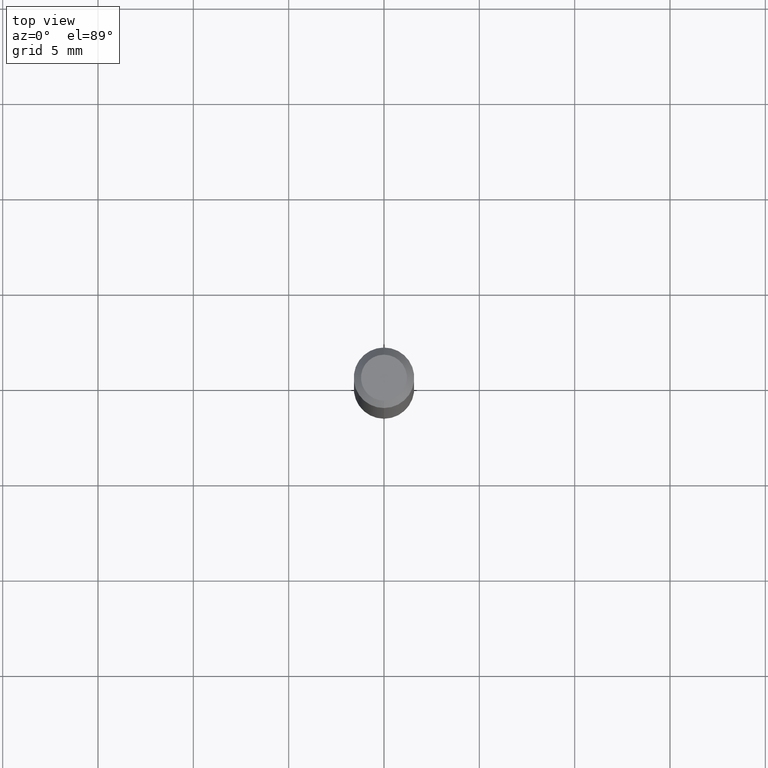
[diagram: clean part render]
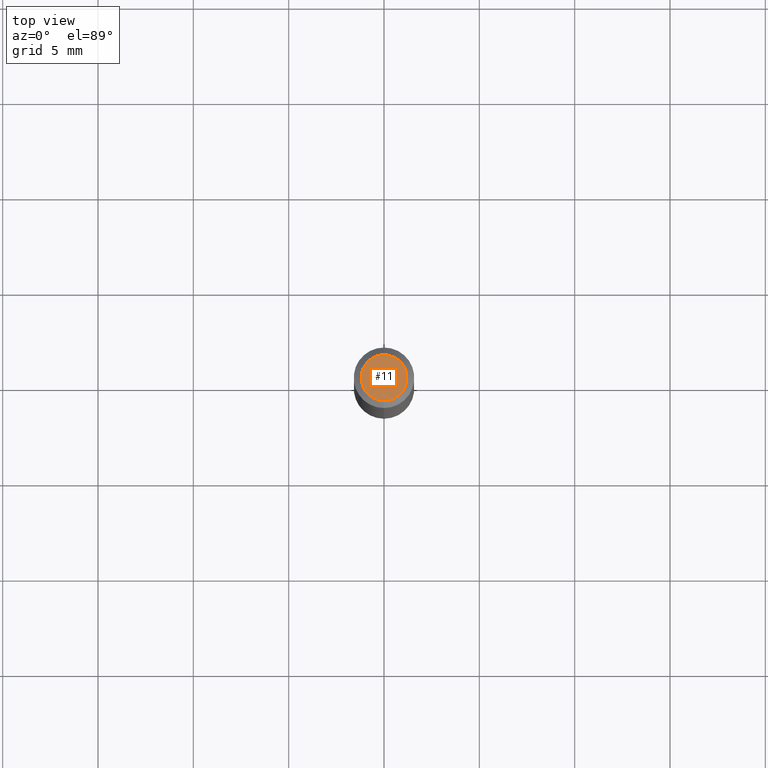
[diagram: same view with one face highlighted and labeled with its STEP entity id]
A machine part, top view. The second image highlights one B-rep face of the part: STEP entity #11.
In plain terms, the highlighted planar face has unit normal (0, -0, -1).
Its self-contained STEP definition (entity closure, byte-faithful):
#5 = AXIS2_PLACEMENT_3D ( 'NONE', #383, #31, #355 ) ;
#11 = ADVANCED_FACE ( 'NONE', ( #196 ), #111, .F. ) ;
#18 = ORIENTED_EDGE ( 'NONE', *, *, #283, .T. ) ;
#31 = DIRECTION ( 'NONE',  ( 2.445496042314745116E-29, -3.491442335155361584E-15, -1.000000000000000000 ) ) ;
#104 = ORIENTED_EDGE ( 'NONE', *, *, #108, .T. ) ;
#108 = EDGE_CURVE ( 'NONE', #192, #411, #215, .T. ) ;
#111 = PLANE ( 'NONE',  #5 ) ;
#134 = DIRECTION ( 'NONE',  ( -6.982962677686266711E-15, -1.000000000000000000, 3.491442335155361979E-15 ) ) ;
#192 = VERTEX_POINT ( 'NONE', #294 ) ;
#196 = FACE_OUTER_BOUND ( 'NONE', #301, .T. ) ;
#215 = CIRCLE ( 'NONE', #286, 0.04749999999999999362 ) ;
#216 = DIRECTION ( 'NONE',  ( -2.445496042314745397E-29, 3.491442335155361584E-15, 1.000000000000000000 ) ) ;
#229 = DIRECTION ( 'NONE',  ( -2.445496042314745397E-29, 3.491442335155361584E-15, 1.000000000000000000 ) ) ;
#264 = CARTESIAN_POINT ( 'NONE',  ( -3.773273898774340269E-16, -0.04749999999999999362, 1.569813386528787925E-16 ) ) ;
#265 = CIRCLE ( 'NONE', #434, 0.04749999999999999362 ) ;
#283 = EDGE_CURVE ( 'NONE', #411, #192, #265, .T. ) ;
#286 = AXIS2_PLACEMENT_3D ( 'NONE', #447, #229, #134 ) ;
#294 = CARTESIAN_POINT ( 'NONE',  ( 3.840629472727447874E-16, 0.04749999999999999362, -1.747056831868805136E-16 ) ) ;
#301 = EDGE_LOOP ( 'NONE', ( #104, #18 ) ) ;
#355 = DIRECTION ( 'NONE',  ( 6.982962677686265922E-15, 1.000000000000000000, -3.491442335155361584E-15 ) ) ;
#383 = CARTESIAN_POINT ( 'NONE',  ( 3.316907271900976096E-16, 0.04749999999999999362, -1.702745970533800772E-16 ) ) ;
#404 = CARTESIAN_POINT ( 'NONE',  ( 2.167240720526205134E-46, -3.094176343444650154E-32, -8.862172267000840541E-18 ) ) ;
#411 = VERTEX_POINT ( 'NONE', #264 ) ;
#434 = AXIS2_PLACEMENT_3D ( 'NONE', #404, #216, #483 ) ;
#447 = CARTESIAN_POINT ( 'NONE',  ( 2.167240720526205134E-46, -3.094176343444650154E-32, -8.862172267000840541E-18 ) ) ;
#483 = DIRECTION ( 'NONE',  ( -6.982962677686266711E-15, -1.000000000000000000, 3.491442335155361979E-15 ) ) ;